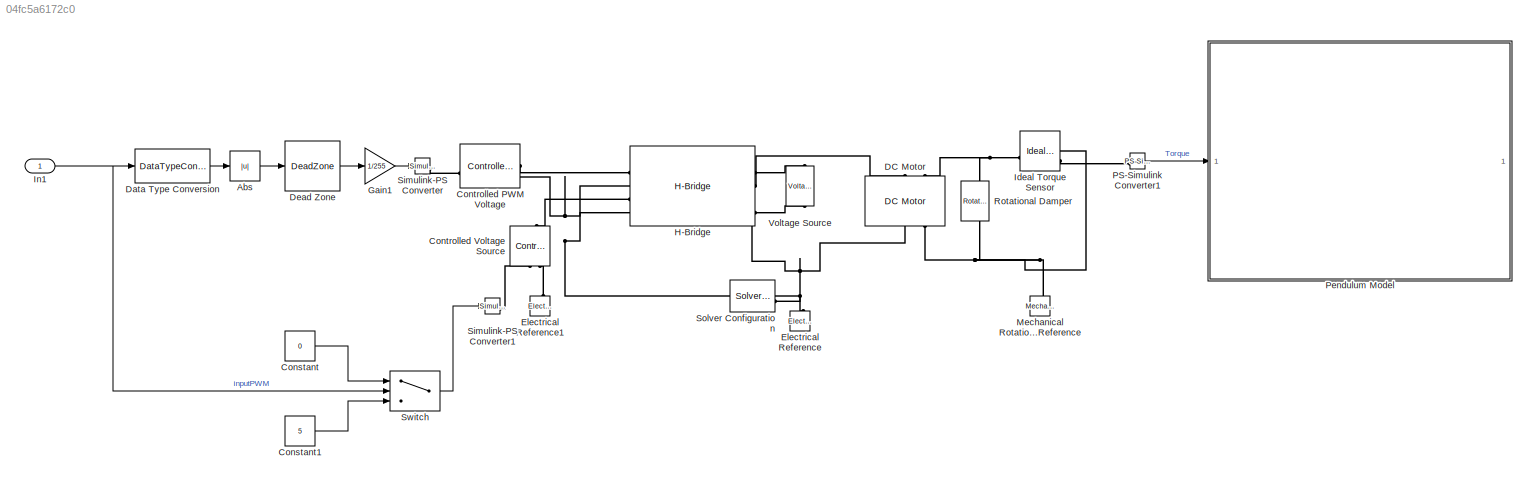
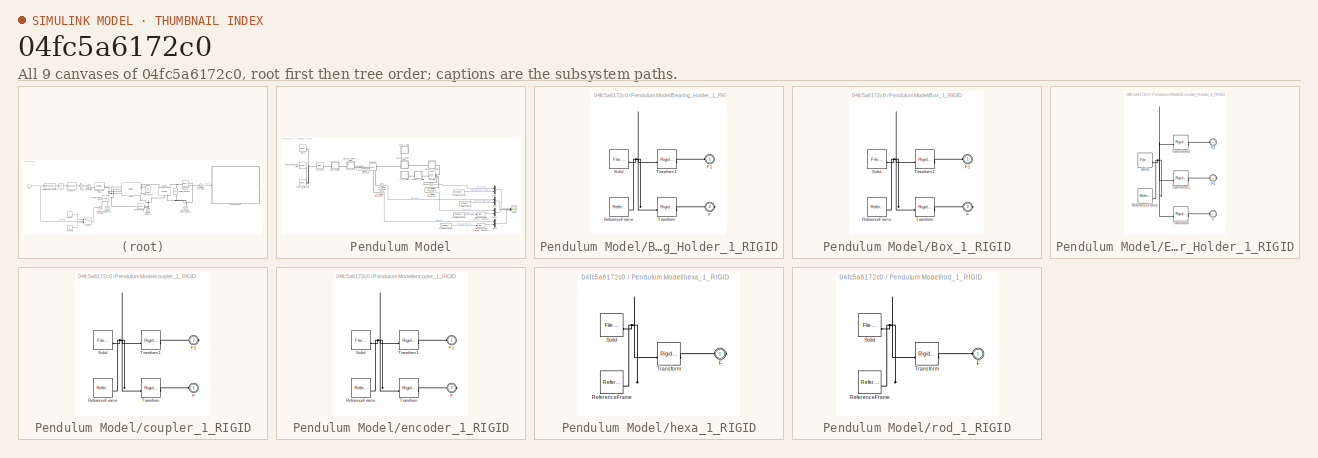
[diagram: thumbnail index - all 9 canvases of the model, root first then tree order]
MODEL slx_04fc5a6172c0
KIND model
CONFIG AbsTol = auto
CONFIG EnableMultiTasking = off
CONFIG FixedStep = auto
CONFIG MaxStep = auto
CONFIG MinStep = auto
CONFIG RelTol = 1e-3
CONFIG SampleTimeConstraint = Unconstrained
CONFIG SolverName = VariableStepAuto
CONFIG StartTime = 0.0
CONFIG StopTime = 10.0
BLOCK [Abs] Abs
  SaturateOnIntegerOverflow = off
BLOCK [Constant] Constant
  Value = 0
BLOCK [Constant] Constant1
  Value = 5
BLOCK [Reference] Controlled PWM Voltage  REF=ee_lib/Integrated Circuits/Controlled PWM
Voltage
  SourceBlock = ee_lib/Integrated Circuits/Controlled PWM\nVoltage
  SourceType = Controlled PWM\nVoltage
BLOCK [Reference] Controlled Voltage Source  REF=fl_lib/Electrical/Electrical Sources/Controlled Voltage
Source
  NameLocation = right
  SourceBlock = fl_lib/Electrical/Electrical Sources/Controlled Voltage\nSource
  SourceType = Controlled Voltage\nSource
BLOCK [Reference] DC Motor  REF=ee_lib/Electromechanical/Brushed Motors/DC Motor
  NameLocation = right
  SourceBlock = ee_lib/Electromechanical/Brushed Motors/DC Motor
  SourceType = DC Motor
BLOCK [DataTypeConversion] Data Type Conversion
  OutDataTypeStr = double
  RndMeth = Floor
  SaturateOnIntegerOverflow = off
BLOCK [DeadZone] Dead Zone
  LowerValue = 0
  UpperValue = 60
BLOCK [Reference] Electrical Reference  REF=fl_lib/Electrical/Electrical Elements/Electrical Reference
  NameLocation = right
  SourceBlock = fl_lib/Electrical/Electrical Elements/Electrical Reference
  SourceType = Electrical Reference
BLOCK [Reference] Electrical Reference1  REF=fl_lib/Electrical/Electrical Elements/Electrical Reference
  NameLocation = right
  SourceBlock = fl_lib/Electrical/Electrical Elements/Electrical Reference
  SourceType = Electrical Reference
BLOCK [Gain] Gain1
  Gain = 1/255
BLOCK [Reference] H-Bridge  REF=ee_lib/Semiconductors &
Converters/Converters/H-Bridge
  SourceBlock = ee_lib/Semiconductors &\nConverters/Converters/H-Bridge
  SourceType = H-Bridge
BLOCK [Reference] Ideal Torque Sensor  REF=fl_lib/Mechanical/Mechanical Sensors/Ideal Torque Sensor
  SourceBlock = fl_lib/Mechanical/Mechanical Sensors/Ideal Torque Sensor
  SourceType = Ideal Torque Sensor
BLOCK [Inport] In1
BLOCK [Reference] Mechanical Rotational Reference  REF=fl_lib/Mechanical/Rotational Elements/Mechanical
Rotational Reference
  NameLocation = right
  SourceBlock = fl_lib/Mechanical/Rotational Elements/Mechanical\nRotational Reference
  SourceType = Mechanical\nRotational Reference
BLOCK [Reference] PS-Simulink Converter1  REF=nesl_utility/PS-Simulink
Converter
  SourceBlock = nesl_utility/PS-Simulink\nConverter
  SourceType = PS-Simulink\nConverter
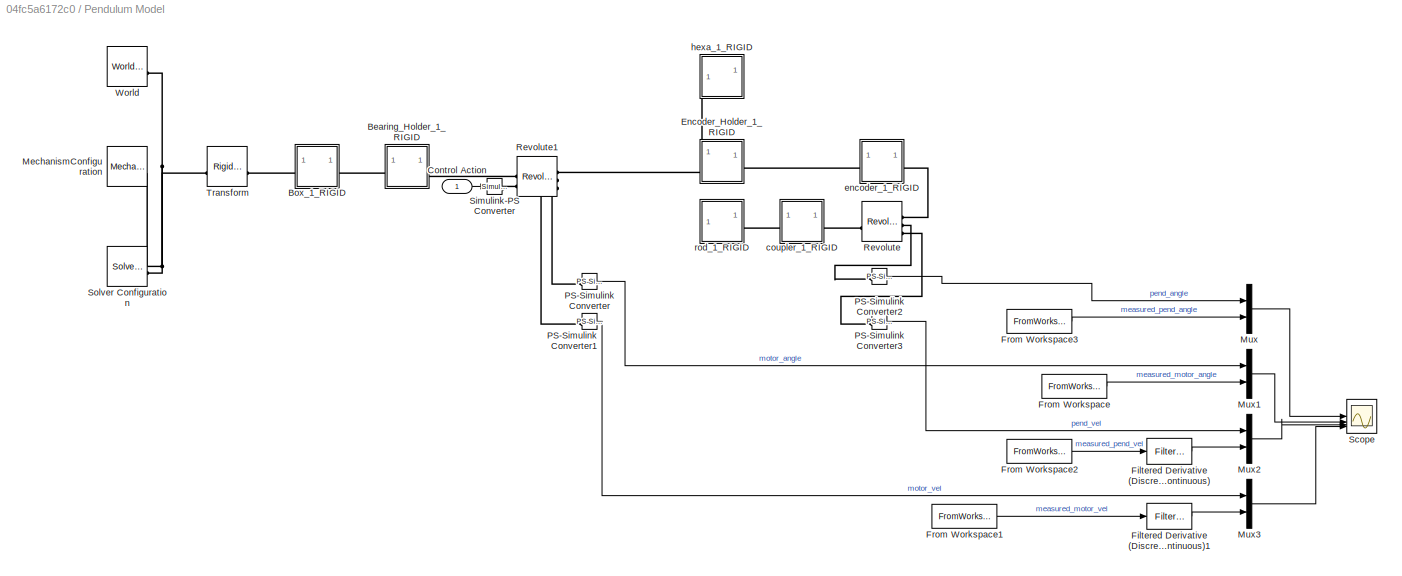
BLOCK [SubSystem] Pendulum Model
BLOCK [SubSystem] Pendulum Model/Bearing_Holder_1_RIGID
  NameLocation = top
BLOCK [PMIOPort] Pendulum Model/Bearing_Holder_1_RIGID/F
  Port = 2
  Side = Right
BLOCK [PMIOPort] Pendulum Model/Bearing_Holder_1_RIGID/F1
  Side = Left
BLOCK [Reference] Pendulum Model/Bearing_Holder_1_RIGID/ReferenceFrame  REF=sm_lib/Frames and
Transforms/Reference
Frame
  SourceBlock = sm_lib/Frames and\nTransforms/Reference\nFrame
  SourceType = Reference\nFrame
BLOCK [Reference] Pendulum Model/Bearing_Holder_1_RIGID/Solid  REF=sm_lib/Body Elements/File Solid
  SourceBlock = sm_lib/Body Elements/File Solid
  SourceType = File Solid
BLOCK [Reference] Pendulum Model/Bearing_Holder_1_RIGID/Transform  REF=sm_lib/Frames and
Transforms/Rigid
Transform
  SourceBlock = sm_lib/Frames and\nTransforms/Rigid\nTransform
  SourceType = Rigid\nTransform
BLOCK [Reference] Pendulum Model/Bearing_Holder_1_RIGID/Transform1  REF=sm_lib/Frames and
Transforms/Rigid
Transform
  SourceBlock = sm_lib/Frames and\nTransforms/Rigid\nTransform
  SourceType = Rigid\nTransform
BLOCK [SubSystem] Pendulum Model/Box_1_RIGID
BLOCK [PMIOPort] Pendulum Model/Box_1_RIGID/F
  Port = 2
  Side = Right
BLOCK [PMIOPort] Pendulum Model/Box_1_RIGID/F1
  Side = Left
BLOCK [Reference] Pendulum Model/Box_1_RIGID/ReferenceFrame  REF=sm_lib/Frames and
Transforms/Reference
Frame
  SourceBlock = sm_lib/Frames and\nTransforms/Reference\nFrame
  SourceType = Reference\nFrame
BLOCK [Reference] Pendulum Model/Box_1_RIGID/Solid  REF=sm_lib/Body Elements/File Solid
  SourceBlock = sm_lib/Body Elements/File Solid
  SourceType = File Solid
BLOCK [Reference] Pendulum Model/Box_1_RIGID/Transform  REF=sm_lib/Frames and
Transforms/Rigid
Transform
  SourceBlock = sm_lib/Frames and\nTransforms/Rigid\nTransform
  SourceType = Rigid\nTransform
BLOCK [Reference] Pendulum Model/Box_1_RIGID/Transform1  REF=sm_lib/Frames and
Transforms/Rigid
Transform
  SourceBlock = sm_lib/Frames and\nTransforms/Rigid\nTransform
  SourceType = Rigid\nTransform
BLOCK [Inport] Pendulum Model/Control Action
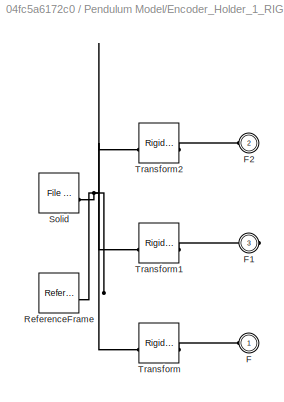
BLOCK [SubSystem] Pendulum Model/Encoder_Holder_1_RIGID
  PortSchema = {"entries":[{"content":{"sides":[{"content":{"connectorIds":["LConn1"]},"type":"ConnectorPlacement.EquallySpacedRectSide","uuid":"7f1b3d14-2753-4541-afe8-891c1fcd8de8"},{"content":{"connectorIds":["RConn1"],"side":"RIGHT"},"type":"ConnectorPlacement.EquallySpacedRectSide","uuid":"587d4b0e-d79a-486a-b6d5-a819323161f5"},{"content":{"connectorIds":["LConn2"],"side":"TOP"},"type":"ConnectorPlacement.E...<+379ch>
BLOCK [PMIOPort] Pendulum Model/Encoder_Holder_1_RIGID/F
  Side = Left
BLOCK [PMIOPort] Pendulum Model/Encoder_Holder_1_RIGID/F1
  Port = 3
  Side = Right
BLOCK [PMIOPort] Pendulum Model/Encoder_Holder_1_RIGID/F2
  Port = 2
  Side = Left
BLOCK [Reference] Pendulum Model/Encoder_Holder_1_RIGID/ReferenceFrame  REF=sm_lib/Frames and
Transforms/Reference
Frame
  SourceBlock = sm_lib/Frames and\nTransforms/Reference\nFrame
  SourceType = Reference\nFrame
BLOCK [Reference] Pendulum Model/Encoder_Holder_1_RIGID/Solid  REF=sm_lib/Body Elements/File Solid
  SourceBlock = sm_lib/Body Elements/File Solid
  SourceType = File Solid
BLOCK [Reference] Pendulum Model/Encoder_Holder_1_RIGID/Transform  REF=sm_lib/Frames and
Transforms/Rigid
Transform
  SourceBlock = sm_lib/Frames and\nTransforms/Rigid\nTransform
  SourceType = Rigid\nTransform
BLOCK [Reference] Pendulum Model/Encoder_Holder_1_RIGID/Transform1  REF=sm_lib/Frames and
Transforms/Rigid
Transform
  SourceBlock = sm_lib/Frames and\nTransforms/Rigid\nTransform
  SourceType = Rigid\nTransform
BLOCK [Reference] Pendulum Model/Encoder_Holder_1_RIGID/Transform2  REF=sm_lib/Frames and
Transforms/Rigid
Transform
  SourceBlock = sm_lib/Frames and\nTransforms/Rigid\nTransform
  SourceType = Rigid\nTransform
BLOCK [Reference] Pendulum Model/Filtered Derivative (Discrete or Continuous)  REF=eeGeneralControl/Filtered Derivative
(Discrete or Continuous)
  LibrarySourceBlock = ee_sl_lib/General Control/Filtered Derivative\n(Discrete or Continuous)
  SourceBlock = eeGeneralControl/Filtered Derivative\n(Discrete or Continuous)
  SourceType = Filtered Derivative (Discrete or Continuous)
BLOCK [Reference] Pendulum Model/Filtered Derivative (Discrete or Continuous)1  REF=eeGeneralControl/Filtered Derivative
(Discrete or Continuous)
  LibrarySourceBlock = ee_sl_lib/General Control/Filtered Derivative\n(Discrete or Continuous)
  SourceBlock = eeGeneralControl/Filtered Derivative\n(Discrete or Continuous)
  SourceType = Filtered Derivative (Discrete or Continuous)
BLOCK [FromWorkspace] Pendulum Model/From Workspace
  VariableName = out_motor_angle
BLOCK [FromWorkspace] Pendulum Model/From Workspace1
  VariableName = out_motor_vel
BLOCK [FromWorkspace] Pendulum Model/From Workspace2
  VariableName = out_pend_vel
BLOCK [FromWorkspace] Pendulum Model/From Workspace3
  VariableName = out_pend_angle
BLOCK [Reference] Pendulum Model/MechanismConfiguration  REF=sm_lib/Utilities/Mechanism
Configuration
  SourceBlock = sm_lib/Utilities/Mechanism\nConfiguration
  SourceType = Mechanism\nConfiguration
BLOCK [Mux] Pendulum Model/Mux
  DisplayOption = bar
  Inputs = 2
BLOCK [Mux] Pendulum Model/Mux1
  DisplayOption = bar
  Inputs = 2
BLOCK [Mux] Pendulum Model/Mux2
  DisplayOption = bar
  Inputs = 2
BLOCK [Mux] Pendulum Model/Mux3
  DisplayOption = bar
  Inputs = 2
BLOCK [Reference] Pendulum Model/PS-Simulink Converter  REF=nesl_utility/PS-Simulink
Converter
  SourceBlock = nesl_utility/PS-Simulink\nConverter
  SourceType = PS-Simulink\nConverter
BLOCK [Reference] Pendulum Model/PS-Simulink Converter1  REF=nesl_utility/PS-Simulink
Converter
  SourceBlock = nesl_utility/PS-Simulink\nConverter
  SourceType = PS-Simulink\nConverter
BLOCK [Reference] Pendulum Model/PS-Simulink Converter2  REF=nesl_utility/PS-Simulink
Converter
  SourceBlock = nesl_utility/PS-Simulink\nConverter
  SourceType = PS-Simulink\nConverter
BLOCK [Reference] Pendulum Model/PS-Simulink Converter3  REF=nesl_utility/PS-Simulink
Converter
  SourceBlock = nesl_utility/PS-Simulink\nConverter
  SourceType = PS-Simulink\nConverter
BLOCK [Reference] Pendulum Model/Revolute  REF=sm_lib/Joints/Revolute Joint
  SourceBlock = sm_lib/Joints/Revolute Joint
  SourceType = Revolute Joint
BLOCK [Reference] Pendulum Model/Revolute1  REF=sm_lib/Joints/Revolute Joint
  SourceBlock = sm_lib/Joints/Revolute Joint
  SourceType = Revolute Joint
BLOCK [Scope] Pendulum Model/Scope
  Floating = off
  NumInputPorts = 4
  ScopeSpecificationString = Simulink.scopes.TimeScopeBlockCfg('CurrentConfiguration', extmgr.ConfigurationSet(extmgr.Configuration('Core','General UI',true),extmgr.Configuration('Core','Source UI',true),extmgr.Configuration('Sources','WiredSimulink',true),extmgr.Configuration('Visuals','Time Domain',true,'SerializedDisplays',{struct('MinYLimReal','-45.94345','MaxYLimReal','242.27149','YLabelReal','','MinYLimMag','0.00000','M...<+3968ch>
BLOCK [Reference] Pendulum Model/Simulink-PS Converter  REF=nesl_utility/Simulink-PS
Converter
  SourceBlock = nesl_utility/Simulink-PS\nConverter
  SourceType = Simulink-PS\nConverter
BLOCK [Reference] Pendulum Model/Solver Configuration  REF=nesl_utility/Solver
Configuration
  SourceBlock = nesl_utility/Solver\nConfiguration
  SourceType = Solver\nConfiguration
BLOCK [Reference] Pendulum Model/Transform  REF=sm_lib/Frames and
Transforms/Rigid
Transform
  SourceBlock = sm_lib/Frames and\nTransforms/Rigid\nTransform
  SourceType = Rigid\nTransform
BLOCK [Reference] Pendulum Model/World  REF=sm_lib/Frames and
Transforms/World Frame
  SourceBlock = sm_lib/Frames and\nTransforms/World Frame
  SourceType = World Frame
BLOCK [SubSystem] Pendulum Model/coupler_1_RIGID
BLOCK [PMIOPort] Pendulum Model/coupler_1_RIGID/F
  Side = Left
BLOCK [PMIOPort] Pendulum Model/coupler_1_RIGID/F1
  Port = 2
  Side = Right
BLOCK [Reference] Pendulum Model/coupler_1_RIGID/ReferenceFrame  REF=sm_lib/Frames and
Transforms/Reference
Frame
  SourceBlock = sm_lib/Frames and\nTransforms/Reference\nFrame
  SourceType = Reference\nFrame
BLOCK [Reference] Pendulum Model/coupler_1_RIGID/Solid  REF=sm_lib/Body Elements/File Solid
  SourceBlock = sm_lib/Body Elements/File Solid
  SourceType = File Solid
BLOCK [Reference] Pendulum Model/coupler_1_RIGID/Transform  REF=sm_lib/Frames and
Transforms/Rigid
Transform
  SourceBlock = sm_lib/Frames and\nTransforms/Rigid\nTransform
  SourceType = Rigid\nTransform
BLOCK [Reference] Pendulum Model/coupler_1_RIGID/Transform1  REF=sm_lib/Frames and
Transforms/Rigid
Transform
  SourceBlock = sm_lib/Frames and\nTransforms/Rigid\nTransform
  SourceType = Rigid\nTransform
BLOCK [SubSystem] Pendulum Model/encoder_1_RIGID
BLOCK [PMIOPort] Pendulum Model/encoder_1_RIGID/F
  Port = 2
  Side = Right
BLOCK [PMIOPort] Pendulum Model/encoder_1_RIGID/F1
  Side = Left
BLOCK [Reference] Pendulum Model/encoder_1_RIGID/ReferenceFrame  REF=sm_lib/Frames and
Transforms/Reference
Frame
  SourceBlock = sm_lib/Frames and\nTransforms/Reference\nFrame
  SourceType = Reference\nFrame
BLOCK [Reference] Pendulum Model/encoder_1_RIGID/Solid  REF=sm_lib/Body Elements/File Solid
  SourceBlock = sm_lib/Body Elements/File Solid
  SourceType = File Solid
BLOCK [Reference] Pendulum Model/encoder_1_RIGID/Transform  REF=sm_lib/Frames and
Transforms/Rigid
Transform
  SourceBlock = sm_lib/Frames and\nTransforms/Rigid\nTransform
  SourceType = Rigid\nTransform
BLOCK [Reference] Pendulum Model/encoder_1_RIGID/Transform1  REF=sm_lib/Frames and
Transforms/Rigid
Transform
  SourceBlock = sm_lib/Frames and\nTransforms/Rigid\nTransform
  SourceType = Rigid\nTransform
BLOCK [SubSystem] Pendulum Model/hexa_1_RIGID
  PortSchema = {"entries":[{"content":{"sides":[{"content":{},"type":"ConnectorPlacement.EquallySpacedRectSide","uuid":"e1f6df5f-4288-4214-964e-703eeeff92bb"},{"content":{"side":"RIGHT"},"type":"ConnectorPlacement.EquallySpacedRectSide","uuid":"923a40ff-1d14-42c3-979b-7f06584d53eb"},{"content":{"side":"TOP"},"type":"ConnectorPlacement.EquallySpacedRectSide","uuid":"ade866a7-78b8-45ea-8201-31157458422f"},{"conten...<+328ch>
BLOCK [PMIOPort] Pendulum Model/hexa_1_RIGID/F
  Side = Right
BLOCK [Reference] Pendulum Model/hexa_1_RIGID/ReferenceFrame  REF=sm_lib/Frames and
Transforms/Reference
Frame
  SourceBlock = sm_lib/Frames and\nTransforms/Reference\nFrame
  SourceType = Reference\nFrame
BLOCK [Reference] Pendulum Model/hexa_1_RIGID/Solid  REF=sm_lib/Body Elements/File Solid
  SourceBlock = sm_lib/Body Elements/File Solid
  SourceType = File Solid
BLOCK [Reference] Pendulum Model/hexa_1_RIGID/Transform  REF=sm_lib/Frames and
Transforms/Rigid
Transform
  SourceBlock = sm_lib/Frames and\nTransforms/Rigid\nTransform
  SourceType = Rigid\nTransform
BLOCK [SubSystem] Pendulum Model/rod_1_RIGID
BLOCK [PMIOPort] Pendulum Model/rod_1_RIGID/F
  Side = Left
BLOCK [Reference] Pendulum Model/rod_1_RIGID/ReferenceFrame  REF=sm_lib/Frames and
Transforms/Reference
Frame
  SourceBlock = sm_lib/Frames and\nTransforms/Reference\nFrame
  SourceType = Reference\nFrame
BLOCK [Reference] Pendulum Model/rod_1_RIGID/Solid  REF=sm_lib/Body Elements/File Solid
  SourceBlock = sm_lib/Body Elements/File Solid
  SourceType = File Solid
BLOCK [Reference] Pendulum Model/rod_1_RIGID/Transform  REF=sm_lib/Frames and
Transforms/Rigid
Transform
  SourceBlock = sm_lib/Frames and\nTransforms/Rigid\nTransform
  SourceType = Rigid\nTransform
BLOCK [Reference] Rotational Damper  REF=fl_lib/Mechanical/Rotational Elements/Rotational Damper
  NameLocation = left
  SourceBlock = fl_lib/Mechanical/Rotational Elements/Rotational Damper
  SourceType = Rotational Damper
BLOCK [Reference] Simulink-PS Converter  REF=nesl_utility/Simulink-PS
Converter
  SourceBlock = nesl_utility/Simulink-PS\nConverter
  SourceType = Simulink-PS\nConverter
BLOCK [Reference] Simulink-PS Converter1  REF=nesl_utility/Simulink-PS
Converter
  SourceBlock = nesl_utility/Simulink-PS\nConverter
  SourceType = Simulink-PS\nConverter
BLOCK [Reference] Solver Configuration  REF=nesl_utility/Solver
Configuration
  SourceBlock = nesl_utility/Solver\nConfiguration
  SourceType = Solver\nConfiguration
BLOCK [Switch] Switch
  InputSameDT = off
  SaturateOnIntegerOverflow = off
BLOCK [Reference] Voltage Source  REF=ee_lib/Sources/Voltage Source
  NameLocation = right
  SourceBlock = ee_lib/Sources/Voltage Source
  SourceType = Voltage Source
LINE Abs:1 -> Dead Zone:1
LINE Constant1:1 -> Switch:3
LINE Constant:1 -> Switch:1
LINE Data Type Conversion:1 -> Abs:1
LINE Dead Zone:1 -> Gain1:1
LINE Gain1:1 -> Simulink-PS Converter:1
NET In1:1 -> Data Type Conversion:1, Switch:2
LINE PS-Simulink Converter1:1 -> Pendulum Model:1
LINE Pendulum Model/Control Action:1 -> Pendulum Model/Simulink-PS Converter:1
LINE Pendulum Model/Filtered Derivative (Discrete or Continuous)1:1 -> Pendulum Model/Mux3:2
LINE Pendulum Model/Filtered Derivative (Discrete or Continuous):1 -> Pendulum Model/Mux2:2
LINE Pendulum Model/From Workspace1:1 -> Pendulum Model/Filtered Derivative (Discrete or Continuous)1:1
LINE Pendulum Model/From Workspace2:1 -> Pendulum Model/Filtered Derivative (Discrete or Continuous):1
LINE Pendulum Model/From Workspace3:1 -> Pendulum Model/Mux:2
LINE Pendulum Model/From Workspace:1 -> Pendulum Model/Mux1:2
LINE Pendulum Model/Mux1:1 -> Pendulum Model/Scope:2
LINE Pendulum Model/Mux2:1 -> Pendulum Model/Scope:3
LINE Pendulum Model/Mux3:1 -> Pendulum Model/Scope:4
LINE Pendulum Model/Mux:1 -> Pendulum Model/Scope:1
LINE Pendulum Model/PS-Simulink Converter1:1 -> Pendulum Model/Mux3:1
LINE Pendulum Model/PS-Simulink Converter2:1 -> Pendulum Model/Mux:1
LINE Pendulum Model/PS-Simulink Converter3:1 -> Pendulum Model/Mux2:1
LINE Pendulum Model/PS-Simulink Converter:1 -> Pendulum Model/Mux1:1
LINE Switch:1 -> Simulink-PS Converter1:1
PLINE Controlled PWM Voltage:LConn1 -- Simulink-PS Converter:RConn1
PLINE Controlled PWM Voltage:RConn1 -- H-Bridge:LConn1
PNET net1: Controlled PWM Voltage:RConn2 -- DC Motor:RConn1 -- Electrical Reference:LConn1 -- H-Bridge:LConn2 -- H-Bridge:LConn4 -- H-Bridge:RConn3 -- Solver Configuration:RConn1
PLINE Controlled Voltage Source:LConn1 -- H-Bridge:LConn3
PLINE Controlled Voltage Source:RConn1 -- Simulink-PS Converter1:RConn1
PLINE Controlled Voltage Source:RConn2 -- Electrical Reference1:LConn1
PLINE DC Motor:LConn1 -- H-Bridge:RConn2
PNET net2: DC Motor:LConn2 -- Ideal Torque Sensor:LConn1 -- Rotational Damper:LConn1
PNET net3: DC Motor:RConn2 -- Ideal Torque Sensor:RConn1 -- Mechanical Rotational Reference:LConn1 -- Rotational Damper:RConn1
PLINE H-Bridge:RConn1 -- Voltage Source:LConn1
PLINE H-Bridge:RConn4 -- Voltage Source:RConn1
PLINE Ideal Torque Sensor:RConn2 -- PS-Simulink Converter1:LConn1
PLINE Pendulum Model/Bearing_Holder_1_RIGID/F1:RConn1 -- Pendulum Model/Bearing_Holder_1_RIGID/Transform1:RConn1
PLINE Pendulum Model/Bearing_Holder_1_RIGID/F:RConn1 -- Pendulum Model/Bearing_Holder_1_RIGID/Transform:RConn1
PNET net4: Pendulum Model/Bearing_Holder_1_RIGID/ReferenceFrame:RConn1 -- Pendulum Model/Bearing_Holder_1_RIGID/Solid:RConn1 -- Pendulum Model/Bearing_Holder_1_RIGID/Transform1:LConn1 -- Pendulum Model/Bearing_Holder_1_RIGID/Transform:LConn1
PLINE Pendulum Model/Bearing_Holder_1_RIGID:LConn1 -- Pendulum Model/Box_1_RIGID:RConn1
PLINE Pendulum Model/Bearing_Holder_1_RIGID:RConn1 -- Pendulum Model/Revolute1:LConn1
PLINE Pendulum Model/Box_1_RIGID/F1:RConn1 -- Pendulum Model/Box_1_RIGID/Transform1:RConn1
PLINE Pendulum Model/Box_1_RIGID/F:RConn1 -- Pendulum Model/Box_1_RIGID/Transform:RConn1
PNET net5: Pendulum Model/Box_1_RIGID/ReferenceFrame:RConn1 -- Pendulum Model/Box_1_RIGID/Solid:RConn1 -- Pendulum Model/Box_1_RIGID/Transform1:LConn1 -- Pendulum Model/Box_1_RIGID/Transform:LConn1
PLINE Pendulum Model/Box_1_RIGID:LConn1 -- Pendulum Model/Transform:RConn1
PLINE Pendulum Model/Encoder_Holder_1_RIGID/F1:RConn1 -- Pendulum Model/Encoder_Holder_1_RIGID/Transform1:RConn1
PLINE Pendulum Model/Encoder_Holder_1_RIGID/F2:RConn1 -- Pendulum Model/Encoder_Holder_1_RIGID/Transform2:RConn1
PLINE Pendulum Model/Encoder_Holder_1_RIGID/F:RConn1 -- Pendulum Model/Encoder_Holder_1_RIGID/Transform:RConn1
PNET net6: Pendulum Model/Encoder_Holder_1_RIGID/ReferenceFrame:RConn1 -- Pendulum Model/Encoder_Holder_1_RIGID/Solid:RConn1 -- Pendulum Model/Encoder_Holder_1_RIGID/Transform1:LConn1 -- Pendulum Model/Encoder_Holder_1_RIGID/Transform2:LConn1 -- Pendulum Model/Encoder_Holder_1_RIGID/Transform:LConn1
PLINE Pendulum Model/Encoder_Holder_1_RIGID:LConn1 -- Pendulum Model/Revolute1:RConn1
PLINE Pendulum Model/Encoder_Holder_1_RIGID:LConn2 -- Pendulum Model/hexa_1_RIGID:RConn1
PLINE Pendulum Model/Encoder_Holder_1_RIGID:RConn1 -- Pendulum Model/encoder_1_RIGID:LConn1
PNET net7: Pendulum Model/MechanismConfiguration:RConn1 -- Pendulum Model/Solver Configuration:RConn1 -- Pendulum Model/Transform:LConn1 -- Pendulum Model/World:RConn1
PLINE Pendulum Model/PS-Simulink Converter1:LConn1 -- Pendulum Model/Revolute1:RConn3
PLINE Pendulum Model/PS-Simulink Converter2:LConn1 -- Pendulum Model/Revolute:RConn2
PLINE Pendulum Model/PS-Simulink Converter3:LConn1 -- Pendulum Model/Revolute:RConn3
PLINE Pendulum Model/PS-Simulink Converter:LConn1 -- Pendulum Model/Revolute1:RConn2
PLINE Pendulum Model/Revolute1:LConn2 -- Pendulum Model/Simulink-PS Converter:RConn1
PLINE Pendulum Model/Revolute:LConn1 -- Pendulum Model/coupler_1_RIGID:RConn1
PLINE Pendulum Model/Revolute:RConn1 -- Pendulum Model/encoder_1_RIGID:RConn1
PLINE Pendulum Model/coupler_1_RIGID/F1:RConn1 -- Pendulum Model/coupler_1_RIGID/Transform1:RConn1
PLINE Pendulum Model/coupler_1_RIGID/F:RConn1 -- Pendulum Model/coupler_1_RIGID/Transform:RConn1
PNET net8: Pendulum Model/coupler_1_RIGID/ReferenceFrame:RConn1 -- Pendulum Model/coupler_1_RIGID/Solid:RConn1 -- Pendulum Model/coupler_1_RIGID/Transform1:LConn1 -- Pendulum Model/coupler_1_RIGID/Transform:LConn1
PLINE Pendulum Model/coupler_1_RIGID:LConn1 -- Pendulum Model/rod_1_RIGID:LConn1
PLINE Pendulum Model/encoder_1_RIGID/F1:RConn1 -- Pendulum Model/encoder_1_RIGID/Transform1:RConn1
PLINE Pendulum Model/encoder_1_RIGID/F:RConn1 -- Pendulum Model/encoder_1_RIGID/Transform:RConn1
PNET net9: Pendulum Model/encoder_1_RIGID/ReferenceFrame:RConn1 -- Pendulum Model/encoder_1_RIGID/Solid:RConn1 -- Pendulum Model/encoder_1_RIGID/Transform1:LConn1 -- Pendulum Model/encoder_1_RIGID/Transform:LConn1
PLINE Pendulum Model/hexa_1_RIGID/F:RConn1 -- Pendulum Model/hexa_1_RIGID/Transform:RConn1
PNET net10: Pendulum Model/hexa_1_RIGID/ReferenceFrame:RConn1 -- Pendulum Model/hexa_1_RIGID/Solid:RConn1 -- Pendulum Model/hexa_1_RIGID/Transform:LConn1
PLINE Pendulum Model/rod_1_RIGID/F:RConn1 -- Pendulum Model/rod_1_RIGID/Transform:RConn1
PNET net11: Pendulum Model/rod_1_RIGID/ReferenceFrame:RConn1 -- Pendulum Model/rod_1_RIGID/Solid:RConn1 -- Pendulum Model/rod_1_RIGID/Transform:LConn1
note: NET lines group one-source signal fan-out (src -> all destinations, sorted); 1:1 wires keep LINE; PNET lines group multi-terminal physical nets as a canonical sorted terminal list (undirected conserving connections); 2-terminal nets keep the pairwise PLINE form
